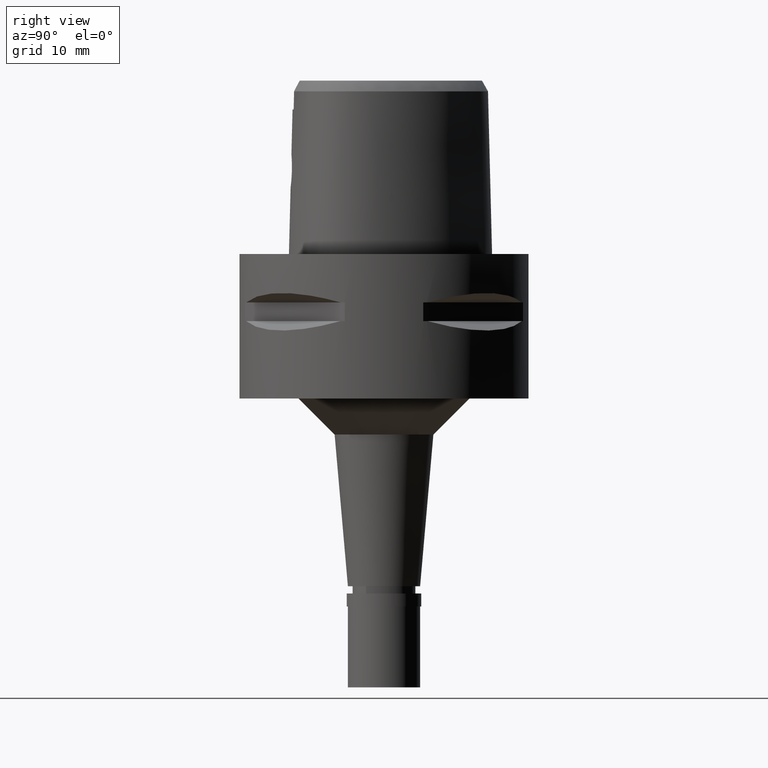
[diagram: clean part render]
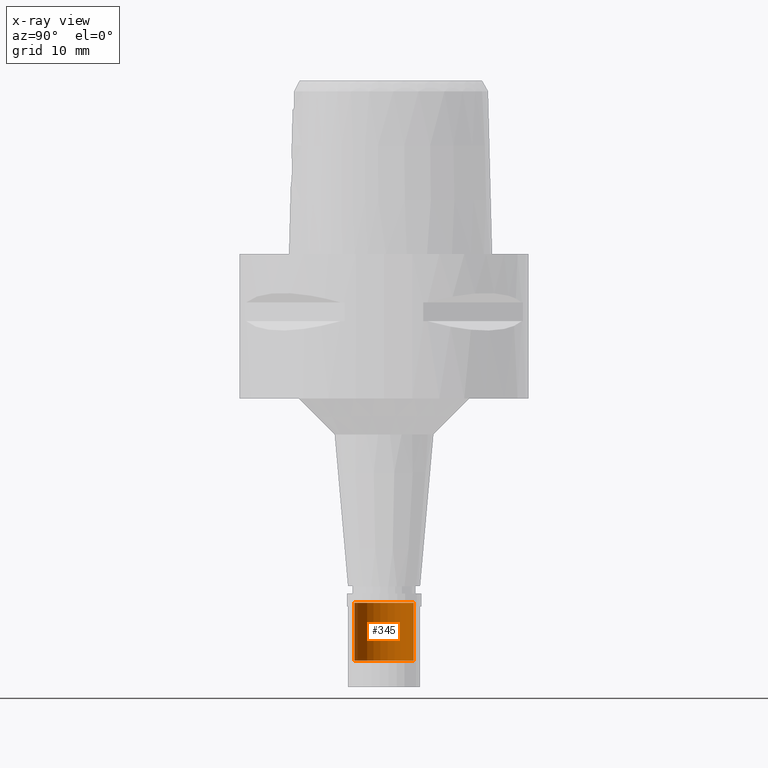
[diagram: x-ray — body ghosted, one internal face saturated and labeled with its STEP entity id]
A machine part, right view, then the same camera in x-ray: the body is ghosted and one INTERNAL B-rep face — a face not visible from any outside direction — is saturated and labeled: STEP entity #345.
In plain terms, the highlighted cylindrical surface (edge-blend (fillet) strip) has radius 4.1 mm, axis along (0, 0, -1).
Its self-contained STEP definition (entity closure, byte-faithful):
#145 = DIRECTION ( 'NONE',  ( 0.0000000000000000000, -1.000000000000000000, 0.0000000000000000000 ) ) ;
#169 = CARTESIAN_POINT ( 'NONE',  ( 0.0000000000000000000, 0.0000000000000000000, -48.30000000000000426 ) ) ;
#188 = DIRECTION ( 'NONE',  ( 0.0000000000000000000, -1.000000000000000000, 0.0000000000000000000 ) ) ;
#345 = ADVANCED_FACE ( 'NONE', ( #3349 ), #2369, .T. ) ;
#384 = AXIS2_PLACEMENT_3D ( 'NONE', #3374, #4421, #188 ) ;
#931 = VERTEX_POINT ( 'NONE', #2779 ) ;
#1014 = DIRECTION ( 'NONE',  ( 0.0000000000000000000, 1.000000000000000000, 0.0000000000000000000 ) ) ;
#1037 = CARTESIAN_POINT ( 'NONE',  ( 0.0000000000000000000, 4.100000000000000533, -48.30000000000000426 ) ) ;
#1038 = EDGE_LOOP ( 'NONE', ( #1232, #4441, #2183, #3068 ) ) ;
#1066 = CIRCLE ( 'NONE', #1878, 4.100000000000000533 ) ;
#1232 = ORIENTED_EDGE ( 'NONE', *, *, #4315, .T. ) ;
#1289 = VECTOR ( 'NONE', #4037, 1000.000000000000000 ) ;
#1416 = LINE ( 'NONE', #4225, #4099 ) ;
#1594 = CARTESIAN_POINT ( 'NONE',  ( 0.0000000000000000000, -4.100000000000000533, -56.30000000000000426 ) ) ;
#1878 = AXIS2_PLACEMENT_3D ( 'NONE', #3164, #4193, #1014 ) ;
#2183 = ORIENTED_EDGE ( 'NONE', *, *, #4146, .T. ) ;
#2206 = CARTESIAN_POINT ( 'NONE',  ( 0.0000000000000000000, 4.100000000000000533, -56.30000000000000426 ) ) ;
#2310 = LINE ( 'NONE', #3408, #1289 ) ;
#2369 = CYLINDRICAL_SURFACE ( 'NONE', #384, 4.100000000000000533 ) ;
#2767 = AXIS2_PLACEMENT_3D ( 'NONE', #169, #3352, #145 ) ;
#2779 = CARTESIAN_POINT ( 'NONE',  ( 0.0000000000000000000, -4.100000000000000533, -48.30000000000000426 ) ) ;
#2807 = EDGE_CURVE ( 'NONE', #3117, #4429, #2310, .T. ) ;
#2822 = VERTEX_POINT ( 'NONE', #1594 ) ;
#2834 = CIRCLE ( 'NONE', #2767, 4.100000000000000533 ) ;
#3068 = ORIENTED_EDGE ( 'NONE', *, *, #2807, .T. ) ;
#3117 = VERTEX_POINT ( 'NONE', #1037 ) ;
#3164 = CARTESIAN_POINT ( 'NONE',  ( 0.0000000000000000000, 0.0000000000000000000, -56.30000000000000426 ) ) ;
#3264 = EDGE_CURVE ( 'NONE', #931, #2822, #1416, .T. ) ;
#3349 = FACE_OUTER_BOUND ( 'NONE', #1038, .T. ) ;
#3352 = DIRECTION ( 'NONE',  ( 0.0000000000000000000, 0.0000000000000000000, -1.000000000000000000 ) ) ;
#3374 = CARTESIAN_POINT ( 'NONE',  ( 0.0000000000000000000, 0.0000000000000000000, 2.814999999999999947 ) ) ;
#3408 = CARTESIAN_POINT ( 'NONE',  ( 0.0000000000000000000, 4.100000000000000533, -48.30000000000000426 ) ) ;
#4037 = DIRECTION ( 'NONE',  ( 0.0000000000000000000, 0.0000000000000000000, -1.000000000000000000 ) ) ;
#4099 = VECTOR ( 'NONE', #4535, 1000.000000000000000 ) ;
#4146 = EDGE_CURVE ( 'NONE', #931, #3117, #2834, .T. ) ;
#4193 = DIRECTION ( 'NONE',  ( 0.0000000000000000000, 0.0000000000000000000, 1.000000000000000000 ) ) ;
#4225 = CARTESIAN_POINT ( 'NONE',  ( 0.0000000000000000000, -4.100000000000000533, -48.30000000000000426 ) ) ;
#4315 = EDGE_CURVE ( 'NONE', #4429, #2822, #1066, .T. ) ;
#4421 = DIRECTION ( 'NONE',  ( 0.0000000000000000000, 0.0000000000000000000, -1.000000000000000000 ) ) ;
#4429 = VERTEX_POINT ( 'NONE', #2206 ) ;
#4441 = ORIENTED_EDGE ( 'NONE', *, *, #3264, .F. ) ;
#4535 = DIRECTION ( 'NONE',  ( 0.0000000000000000000, 0.0000000000000000000, -1.000000000000000000 ) ) ;